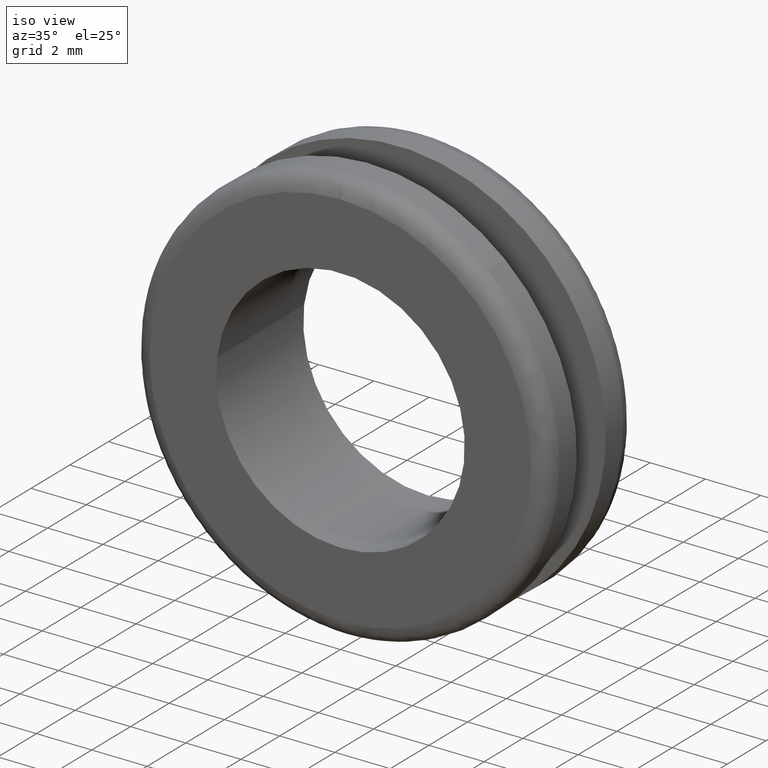
[diagram: clean part render]
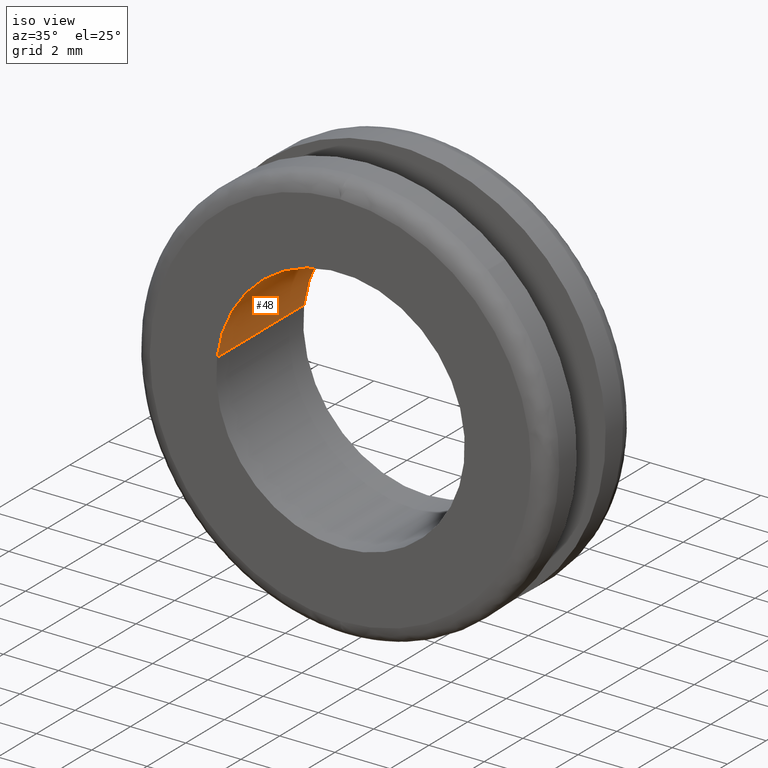
[diagram: same view with one face highlighted and labeled with its STEP entity id]
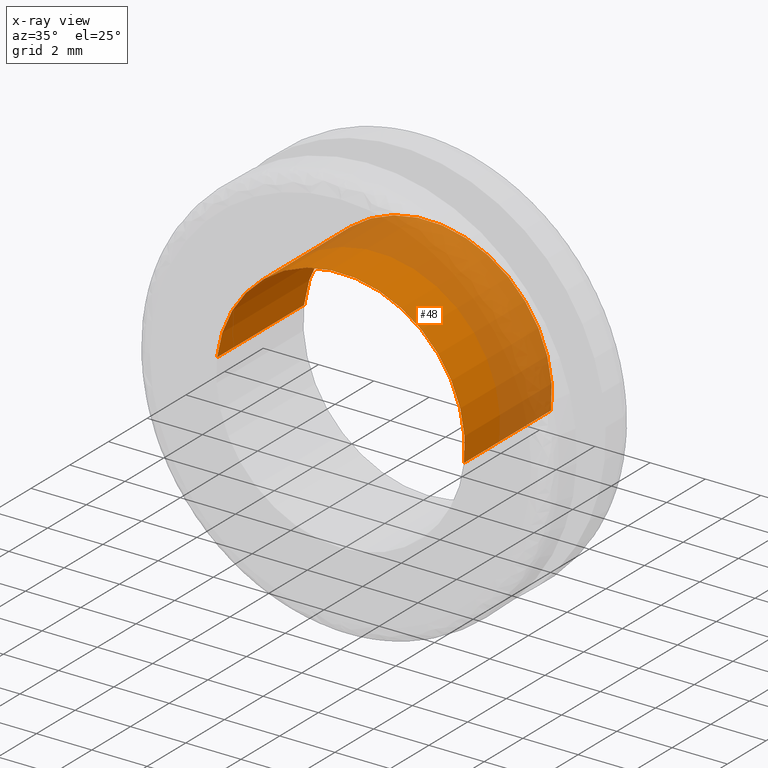
[diagram: x-ray of the same camera — body ghosted, the highlighted face saturated]
A machine part, iso view. The second image highlights one B-rep face of the part: STEP entity #48.
The next image is the same camera in x-ray: the body ghosted, the highlighted face saturated — about 52% of this face is hidden behind the body in this view.
In plain terms, the highlighted cylindrical surface (partial cylindrical patch) has radius 4.5 mm, axis along (-0, 1, 0).
Its self-contained STEP definition (entity closure, byte-faithful):
#48=ADVANCED_FACE('',(#141),#140,.F.);
#140=CYLINDRICAL_SURFACE('',#267,4.50000000000E+000);
#141=FACE_OUTER_BOUND('',#268,.T.);
#264=CARTESIAN_POINT('',(8.41911254280E-017,4.61250000000E+000,5.75740383094E-016));
#265=DIRECTION('',(-6.34528310202E-017,1.00000000000E+000,3.02261674367E-016));
#266=DIRECTION('',(-9.93009526364E-001,-9.86864910778E-017,1.18034234657E-001));
#267=AXIS2_PLACEMENT_3D('',#264,#265,#266);
#268=EDGE_LOOP('',(#434,#435,#436,#437));
#434=ORIENTED_EDGE('',*,*,#501,.T.);
#435=ORIENTED_EDGE('',*,*,#513,.T.);
#436=ORIENTED_EDGE('',*,*,#496,.F.);
#437=ORIENTED_EDGE('',*,*,#514,.F.);
#496=EDGE_CURVE('',#632,#639,#640,.T.);
#501=EDGE_CURVE('',#674,#666,#675,.T.);
#513=EDGE_CURVE('',#666,#639,#753,.T.);
#514=EDGE_CURVE('',#674,#632,#759,.T.);
#632=VERTEX_POINT('',#912);
#639=VERTEX_POINT('',#917);
#640=CIRCLE('',#921,4.50000000000E+000);
#666=VERTEX_POINT('',#936);
#674=VERTEX_POINT('',#942);
#675=CIRCLE('',#946,4.50000000000E+000);
#753=(BOUNDED_CURVE() B_SPLINE_CURVE(1,(#989,#990),.UNSPECIFIED.,.F.,.F.) B_SPLINE_CURVE_WITH_KNOTS((2,2),(8.33333313467E-002,9.16666670832E-001),.UNSPECIFIED.) CURVE() GEOMETRIC_REPRESENTATION_ITEM() RATIONAL_B_SPLINE_CURVE((1.00000000000E+000,1.00000000000E+000)) REPRESENTATION_ITEM('') );
#759=(BOUNDED_CURVE() B_SPLINE_CURVE(1,(#991,#992),.UNSPECIFIED.,.F.,.F.) B_SPLINE_CURVE_WITH_KNOTS((2,2),(8.33333333333E-002,9.16666666666E-001),.UNSPECIFIED.) CURVE() GEOMETRIC_REPRESENTATION_ITEM() RATIONAL_B_SPLINE_CURVE((7.50000000000E-001,7.50000000000E-001)) REPRESENTATION_ITEM('') );
#912=CARTESIAN_POINT('',(4.46845099907E+000,4.50000000000E+000,-5.31926375409E-001));
#917=CARTESIAN_POINT('',(-4.46854306287E+000,4.50000000000E+000,5.31152421835E-001));
#918=CARTESIAN_POINT('',(1.73461245367E-012,4.50000000000E+000,3.81872311550E-012));
#919=DIRECTION('',(1.42520898135E-014,-1.00000000000E+000,9.81640428715E-014));
#920=DIRECTION('',(-3.85372289635E-013,-9.81640428715E-014,-1.00000000000E+000));
#921=AXIS2_PLACEMENT_3D('',#918,#919,#920);
#936=CARTESIAN_POINT('',(-4.46854306287E+000,-4.96971469233E-016,5.31152421835E-001));
#942=CARTESIAN_POINT('',(4.46845099907E+000,-6.61270565827E-016,-5.31926375409E-001));
#943=CARTESIAN_POINT('',(1.69242397874E-012,-5.79362080859E-016,3.72790687209E-012));
#944=DIRECTION('',(-9.11941276993E-017,-1.00000000000E+000,-6.12092238906E-016));
#945=DIRECTION('',(-3.76351727560E-013,6.12092238906E-016,-1.00000000000E+000));
#946=AXIS2_PLACEMENT_3D('',#943,#944,#945);
#989=CARTESIAN_POINT('',(-4.46854286864E+000,-1.07279402584E-008,5.31154055955E-001));
#990=CARTESIAN_POINT('',(-4.46854286864E+000,4.50000002249E+000,5.31154055955E-001));
#991=CARTESIAN_POINT('',(4.46854286864E+000,3.70074341542E-016,-5.31154055955E-001));
#992=CARTESIAN_POINT('',(4.46854286864E+000,4.50000000000E+000,-5.31154055955E-001));